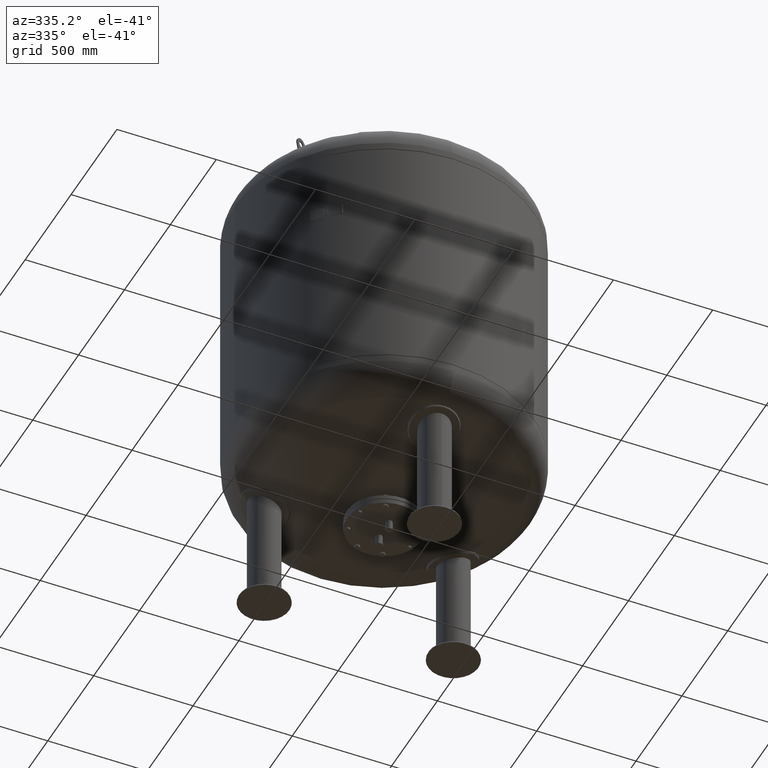
[diagram: clean part render]
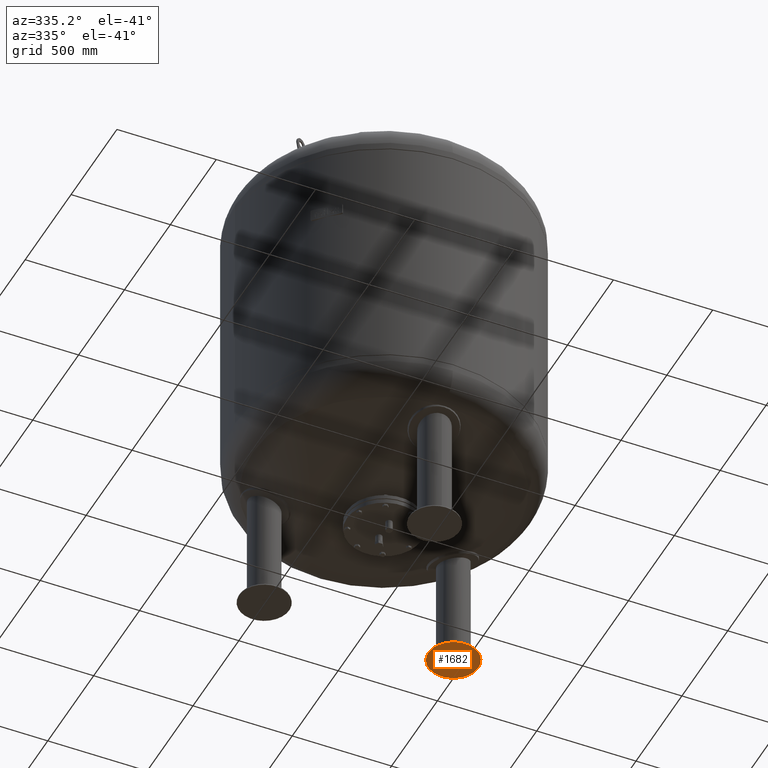
[diagram: same view with one face highlighted and labeled with its STEP entity id]
A machine part, auxiliary view. The second image highlights one B-rep face of the part: STEP entity #1682.
In plain terms, the highlighted spherical surface has radius 570 mm.
Its self-contained STEP definition (entity closure, byte-faithful):
#1170=CARTESIAN_POINT('',(585.702740850056100,338.155635094881400,14.171372612881115));
#1171=VERTEX_POINT('',#1170);
#1180=CARTESIAN_POINT('',(366.925203312826450,211.844364905118480,14.171372612881109));
#1181=VERTEX_POINT('',#1180);
#1182=CARTESIAN_POINT('',(476.313972081441250,274.999999999999940,14.171372612881115));
#1183=DIRECTION('',(0.0,0.0,-1.0));
#1184=DIRECTION('',(0.866025403784439,0.500000000000000,0.0));
#1185=AXIS2_PLACEMENT_3D('',#1182,#1183,#1184);
#1186=CIRCLE('',#1185,126.311270189762990);
#1187=EDGE_CURVE('',#1181,#1171,#1186,.T.);
#1663=CARTESIAN_POINT('',(476.313972081441250,274.999999999999940,14.171372612881115));
#1664=DIRECTION('',(0.0,0.0,-1.0));
#1665=DIRECTION('',(0.866025403784439,0.500000000000000,0.0));
#1666=AXIS2_PLACEMENT_3D('',#1663,#1664,#1665);
#1667=CIRCLE('',#1666,126.311270189762990);
#1668=EDGE_CURVE('',#1171,#1181,#1667,.T.);
#1673=CARTESIAN_POINT('',(476.313972081441310,274.999999999999830,570.0));
#1674=DIRECTION('',(0.500000000000000,-0.866025403784439,-1.836970E-016));
#1675=DIRECTION('',(0.866025403784439,0.500000000000000,0.0));
#1676=AXIS2_PLACEMENT_3D('',#1673,#1674,#1675);
#1677=SPHERICAL_SURFACE('',#1676,570.0);
#1678=ORIENTED_EDGE('',*,*,#1668,.T.);
#1679=ORIENTED_EDGE('',*,*,#1187,.T.);
#1680=EDGE_LOOP('',(#1678,#1679));
#1681=FACE_OUTER_BOUND('',#1680,.T.);
#1682=ADVANCED_FACE('',(#1681),#1677,.T.);